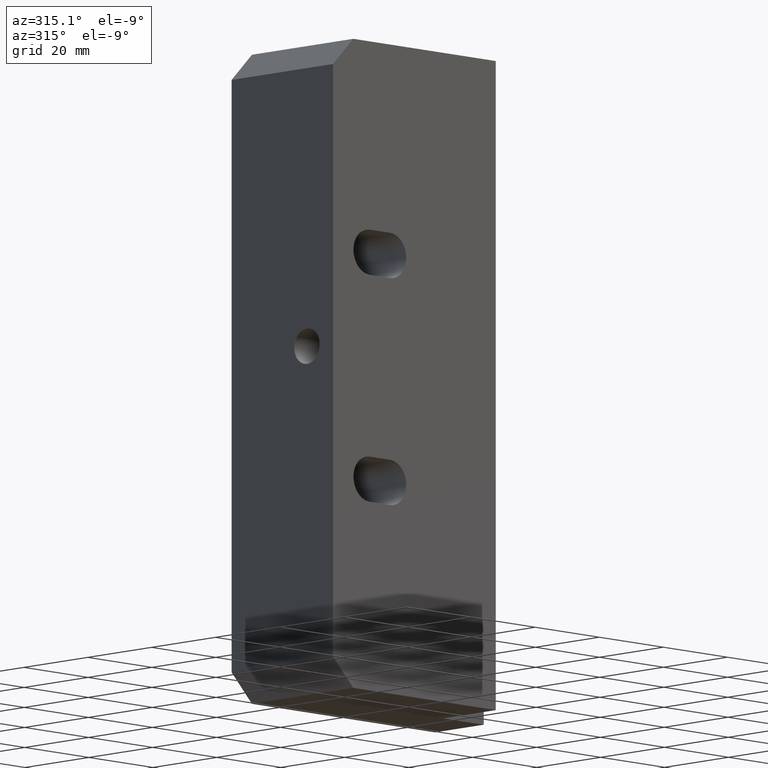
[diagram: clean part render]
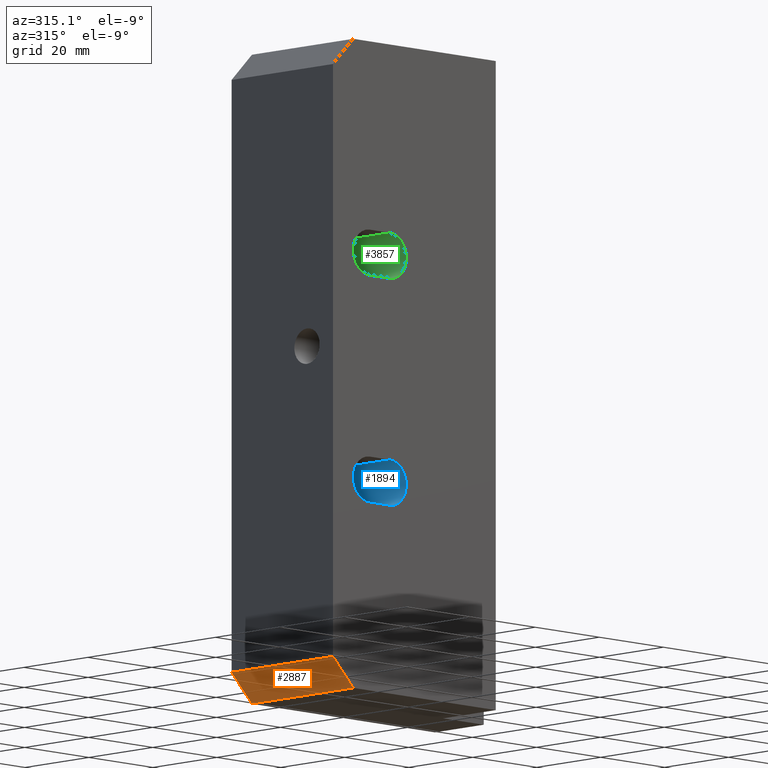
[diagram: same view with three faces highlighted in distinct colors, each labeled with its STEP entity id]
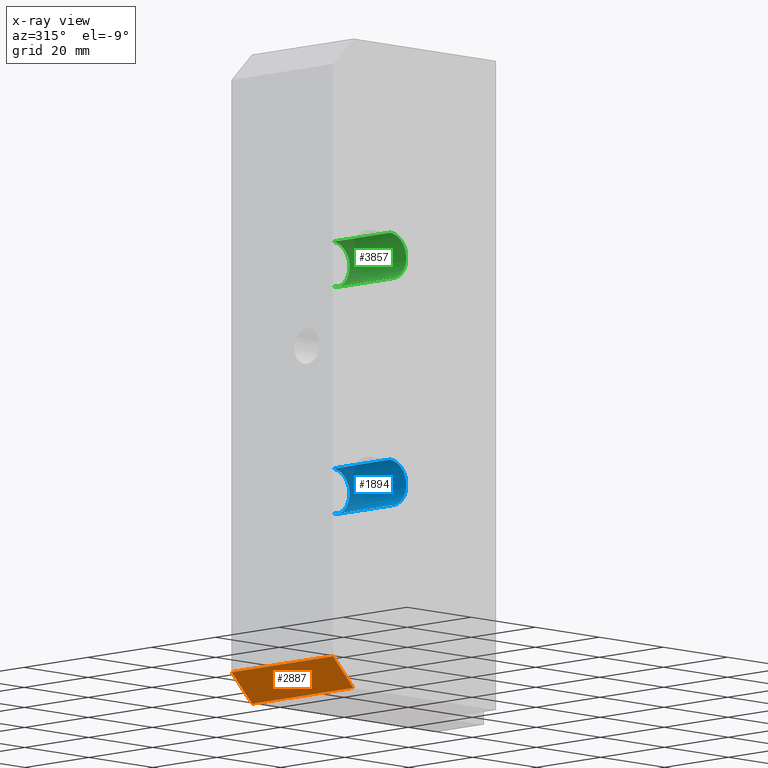
[diagram: x-ray of the same camera — body ghosted, the three highlighted faces saturated]
A machine part, auxiliary view with three faces highlighted in distinct colors.
The next image is the same camera in x-ray (body ghosted, the three faces saturated) — at least one of them is partly hidden behind the body in this view.
Their STEP definitions:

[orange] entity #2887 — the highlighted planar face has unit normal (0.7071, 0, 0.7071).
#42 = DIRECTION ( 'NONE',  ( 0.7071067811865486800, 0.0000000000000000000, -0.7071067811865463500 ) ) ;
#162 = VECTOR ( 'NONE', #915, 39.37007874015748100 ) ;
#200 = CARTESIAN_POINT ( 'NONE',  ( -2.249999999999999600, 1.250000000000000000, -5.719999999999999800 ) ) ;
#341 = VECTOR ( 'NONE', #3307, 39.37007874015748100 ) ;
#414 = AXIS2_PLACEMENT_3D ( 'NONE', #1345, #2018, #42 ) ;
#432 = CARTESIAN_POINT ( 'NONE',  ( -2.249999999999999600, 0.0000000000000000000, -5.719999999999999800 ) ) ;
#496 = CARTESIAN_POINT ( 'NONE',  ( -2.500000000000000000, 0.0000000000000000000, -5.470000000000000600 ) ) ;
#607 = EDGE_CURVE ( 'NONE', #1426, #3524, #3099, .T. ) ;
#723 = EDGE_CURVE ( 'NONE', #3618, #1426, #3352, .T. ) ;
#820 = ORIENTED_EDGE ( 'NONE', *, *, #607, .F. ) ;
#915 = DIRECTION ( 'NONE',  ( 0.7071067811865486800, -0.0000000000000000000, -0.7071067811865463500 ) ) ;
#1036 = CARTESIAN_POINT ( 'NONE',  ( -2.500000000000000000, 1.250000000000000000, -5.470000000000000600 ) ) ;
#1345 = CARTESIAN_POINT ( 'NONE',  ( -2.500000000000000000, 1.250000000000000000, -5.470000000000000600 ) ) ;
#1347 = DIRECTION ( 'NONE',  ( -0.7071067811865486800, -0.0000000000000000000, 0.7071067811865463500 ) ) ;
#1426 = VERTEX_POINT ( 'NONE', #3484 ) ;
#1679 = VECTOR ( 'NONE', #1347, 39.37007874015748100 ) ;
#1681 = PLANE ( 'NONE',  #414 ) ;
#1696 = CARTESIAN_POINT ( 'NONE',  ( -2.500000000000000000, 1.250000000000000000, -5.470000000000000600 ) ) ;
#1707 = EDGE_CURVE ( 'NONE', #2950, #3618, #3656, .T. ) ;
#2018 = DIRECTION ( 'NONE',  ( 0.7071067811865463500, 0.0000000000000000000, 0.7071067811865486800 ) ) ;
#2309 = VECTOR ( 'NONE', #2388, 39.37007874015748100 ) ;
#2388 = DIRECTION ( 'NONE',  ( 0.0000000000000000000, -1.000000000000000000, 0.0000000000000000000 ) ) ;
#2423 = ORIENTED_EDGE ( 'NONE', *, *, #3713, .F. ) ;
#2536 = EDGE_LOOP ( 'NONE', ( #3175, #3417, #2423, #820 ) ) ;
#2543 = FACE_OUTER_BOUND ( 'NONE', #2536, .T. ) ;
#2887 = ADVANCED_FACE ( 'NONE', ( #2543 ), #1681, .F. ) ;
#2950 = VERTEX_POINT ( 'NONE', #432 ) ;
#2978 = CARTESIAN_POINT ( 'NONE',  ( -2.249999999999999600, 1.250000000000000000, -5.719999999999999800 ) ) ;
#3099 = LINE ( 'NONE', #1696, #2309 ) ;
#3175 = ORIENTED_EDGE ( 'NONE', *, *, #723, .F. ) ;
#3237 = CARTESIAN_POINT ( 'NONE',  ( -1.124999999999996000, 0.0000000000000000000, -6.844999999999999800 ) ) ;
#3307 = DIRECTION ( 'NONE',  ( -0.0000000000000000000, 1.000000000000000000, 0.0000000000000000000 ) ) ;
#3352 = LINE ( 'NONE', #1036, #1679 ) ;
#3417 = ORIENTED_EDGE ( 'NONE', *, *, #1707, .F. ) ;
#3484 = CARTESIAN_POINT ( 'NONE',  ( -2.500000000000000000, 1.250000000000000000, -5.470000000000000600 ) ) ;
#3524 = VERTEX_POINT ( 'NONE', #496 ) ;
#3618 = VERTEX_POINT ( 'NONE', #200 ) ;
#3656 = LINE ( 'NONE', #2978, #341 ) ;
#3677 = LINE ( 'NONE', #3237, #162 ) ;
#3713 = EDGE_CURVE ( 'NONE', #3524, #2950, #3677, .T. ) ;

[blue] entity #1894 — the highlighted cylindrical surface (edge-blend (fillet) strip) has radius 5.08 mm, axis along (-0, -1, -0).
#342 = VERTEX_POINT ( 'NONE', #2900 ) ;
#416 = DIRECTION ( 'NONE',  ( -0.0000000000000000000, -1.000000000000000000, -0.0000000000000000000 ) ) ;
#501 = CYLINDRICAL_SURFACE ( 'NONE', #912, 0.2000000000000000400 ) ;
#697 = EDGE_LOOP ( 'NONE', ( #2157, #825, #2161, #1855 ) ) ;
#813 = DIRECTION ( 'NONE',  ( -0.0000000000000000000, -1.000000000000000000, -0.0000000000000000000 ) ) ;
#825 = ORIENTED_EDGE ( 'NONE', *, *, #4012, .F. ) ;
#861 = EDGE_CURVE ( 'NONE', #342, #1403, #2476, .T. ) ;
#897 = DIRECTION ( 'NONE',  ( 0.0000000000000000000, -1.000000000000000000, 0.0000000000000000000 ) ) ;
#912 = AXIS2_PLACEMENT_3D ( 'NONE', #1721, #416, #3710 ) ;
#982 = DIRECTION ( 'NONE',  ( 0.0000000000000000000, -1.000000000000000000, 0.0000000000000000000 ) ) ;
#1403 = VERTEX_POINT ( 'NONE', #1437 ) ;
#1437 = CARTESIAN_POINT ( 'NONE',  ( -1.798734939028664200, 0.7000000000000000700, -3.658999999999444300 ) ) ;
#1522 = CIRCLE ( 'NONE', #1882, 0.2000000000000000400 ) ;
#1566 = EDGE_CURVE ( 'NONE', #2529, #3943, #1522, .T. ) ;
#1570 = FACE_OUTER_BOUND ( 'NONE', #697, .T. ) ;
#1600 = AXIS2_PLACEMENT_3D ( 'NONE', #2972, #982, #3301 ) ;
#1708 = LINE ( 'NONE', #1765, #2494 ) ;
#1721 = CARTESIAN_POINT ( 'NONE',  ( -1.798734939028664200, 0.7000000000000000700, -3.858999999999444400 ) ) ;
#1754 = VECTOR ( 'NONE', #813, 39.37007874015748100 ) ;
#1765 = CARTESIAN_POINT ( 'NONE',  ( -1.798734939028664200, 0.7000000000000000700, -4.058999999999444200 ) ) ;
#1855 = ORIENTED_EDGE ( 'NONE', *, *, #2608, .T. ) ;
#1882 = AXIS2_PLACEMENT_3D ( 'NONE', #2888, #897, #3227 ) ;
#1894 = ADVANCED_FACE ( 'NONE', ( #1570 ), #501, .F. ) ;
#2157 = ORIENTED_EDGE ( 'NONE', *, *, #1566, .T. ) ;
#2161 = ORIENTED_EDGE ( 'NONE', *, *, #861, .F. ) ;
#2476 = CIRCLE ( 'NONE', #1600, 0.2000000000000000400 ) ;
#2494 = VECTOR ( 'NONE', #4089, 39.37007874015748100 ) ;
#2529 = VERTEX_POINT ( 'NONE', #3411 ) ;
#2608 = EDGE_CURVE ( 'NONE', #342, #2529, #1708, .T. ) ;
#2643 = LINE ( 'NONE', #2811, #1754 ) ;
#2730 = CARTESIAN_POINT ( 'NONE',  ( -1.798734939028664200, -0.0000000000000000000, -3.658999999999444300 ) ) ;
#2811 = CARTESIAN_POINT ( 'NONE',  ( -1.798734939028664200, 0.7000000000000000700, -3.658999999999444300 ) ) ;
#2888 = CARTESIAN_POINT ( 'NONE',  ( -1.798734939028664200, -0.0000000000000000000, -3.858999999999444400 ) ) ;
#2900 = CARTESIAN_POINT ( 'NONE',  ( -1.798734939028664200, 0.7000000000000000700, -4.058999999999444200 ) ) ;
#2972 = CARTESIAN_POINT ( 'NONE',  ( -1.798734939028664200, 0.7000000000000000700, -3.858999999999444400 ) ) ;
#3227 = DIRECTION ( 'NONE',  ( 0.0000000000000000000, 0.0000000000000000000, -1.000000000000000000 ) ) ;
#3301 = DIRECTION ( 'NONE',  ( 0.0000000000000000000, 0.0000000000000000000, -1.000000000000000000 ) ) ;
#3411 = CARTESIAN_POINT ( 'NONE',  ( -1.798734939028664200, 0.0000000000000000000, -4.058999999999444200 ) ) ;
#3710 = DIRECTION ( 'NONE',  ( 0.0000000000000000000, 0.0000000000000000000, -1.000000000000000000 ) ) ;
#3943 = VERTEX_POINT ( 'NONE', #2730 ) ;
#4012 = EDGE_CURVE ( 'NONE', #1403, #3943, #2643, .T. ) ;
#4089 = DIRECTION ( 'NONE',  ( -0.0000000000000000000, -1.000000000000000000, -0.0000000000000000000 ) ) ;

[green] entity #3857 — the highlighted cylindrical surface (edge-blend (fillet) strip) has radius 5.08 mm, axis along (-0, -1, -0).
#1 = VERTEX_POINT ( 'NONE', #1374 ) ;
#123 = AXIS2_PLACEMENT_3D ( 'NONE', #468, #2784, #789 ) ;
#298 = CIRCLE ( 'NONE', #123, 0.2000000000000000400 ) ;
#318 = EDGE_CURVE ( 'NONE', #1636, #1, #561, .T. ) ;
#366 = VECTOR ( 'NONE', #3853, 39.37007874015748100 ) ;
#468 = CARTESIAN_POINT ( 'NONE',  ( -1.798734939028664200, 0.7000000000000000700, -1.858999999999444900 ) ) ;
#561 = LINE ( 'NONE', #3551, #2207 ) ;
#647 = CARTESIAN_POINT ( 'NONE',  ( -1.798734939028664200, 0.7000000000000000700, -1.858999999999444900 ) ) ;
#789 = DIRECTION ( 'NONE',  ( 0.0000000000000000000, 0.0000000000000000000, -1.000000000000000000 ) ) ;
#1144 = CIRCLE ( 'NONE', #1514, 0.2000000000000000400 ) ;
#1230 = LINE ( 'NONE', #1518, #366 ) ;
#1374 = CARTESIAN_POINT ( 'NONE',  ( -1.798734939028664200, -0.0000000000000000000, -1.658999999999444900 ) ) ;
#1377 = EDGE_CURVE ( 'NONE', #3161, #1636, #298, .T. ) ;
#1514 = AXIS2_PLACEMENT_3D ( 'NONE', #1576, #3906, #1916 ) ;
#1518 = CARTESIAN_POINT ( 'NONE',  ( -1.798734939028664200, 0.7000000000000000700, -2.058999999999445100 ) ) ;
#1576 = CARTESIAN_POINT ( 'NONE',  ( -1.798734939028664200, -0.0000000000000000000, -1.858999999999444900 ) ) ;
#1636 = VERTEX_POINT ( 'NONE', #2276 ) ;
#1742 = ORIENTED_EDGE ( 'NONE', *, *, #3174, .T. ) ;
#1916 = DIRECTION ( 'NONE',  ( 0.0000000000000000000, 0.0000000000000000000, -1.000000000000000000 ) ) ;
#2006 = ORIENTED_EDGE ( 'NONE', *, *, #1377, .F. ) ;
#2207 = VECTOR ( 'NONE', #3880, 39.37007874015748100 ) ;
#2276 = CARTESIAN_POINT ( 'NONE',  ( -1.798734939028664200, 0.7000000000000000700, -1.658999999999444900 ) ) ;
#2294 = ORIENTED_EDGE ( 'NONE', *, *, #3644, .T. ) ;
#2378 = CYLINDRICAL_SURFACE ( 'NONE', #3874, 0.2000000000000000400 ) ;
#2482 = ORIENTED_EDGE ( 'NONE', *, *, #318, .F. ) ;
#2784 = DIRECTION ( 'NONE',  ( 0.0000000000000000000, -1.000000000000000000, 0.0000000000000000000 ) ) ;
#2979 = DIRECTION ( 'NONE',  ( -0.0000000000000000000, -1.000000000000000000, -0.0000000000000000000 ) ) ;
#3161 = VERTEX_POINT ( 'NONE', #3211 ) ;
#3174 = EDGE_CURVE ( 'NONE', #3877, #1, #1144, .T. ) ;
#3211 = CARTESIAN_POINT ( 'NONE',  ( -1.798734939028664200, 0.7000000000000000700, -2.058999999999445100 ) ) ;
#3308 = DIRECTION ( 'NONE',  ( 0.0000000000000000000, 0.0000000000000000000, -1.000000000000000000 ) ) ;
#3497 = EDGE_LOOP ( 'NONE', ( #1742, #2482, #2006, #2294 ) ) ;
#3551 = CARTESIAN_POINT ( 'NONE',  ( -1.798734939028664200, 0.7000000000000000700, -1.658999999999444900 ) ) ;
#3644 = EDGE_CURVE ( 'NONE', #3161, #3877, #1230, .T. ) ;
#3646 = CARTESIAN_POINT ( 'NONE',  ( -1.798734939028664200, 0.0000000000000000000, -2.058999999999445100 ) ) ;
#3853 = DIRECTION ( 'NONE',  ( -0.0000000000000000000, -1.000000000000000000, -0.0000000000000000000 ) ) ;
#3857 = ADVANCED_FACE ( 'NONE', ( #4151 ), #2378, .F. ) ;
#3874 = AXIS2_PLACEMENT_3D ( 'NONE', #647, #2979, #3308 ) ;
#3877 = VERTEX_POINT ( 'NONE', #3646 ) ;
#3880 = DIRECTION ( 'NONE',  ( -0.0000000000000000000, -1.000000000000000000, -0.0000000000000000000 ) ) ;
#3906 = DIRECTION ( 'NONE',  ( 0.0000000000000000000, -1.000000000000000000, 0.0000000000000000000 ) ) ;
#4151 = FACE_OUTER_BOUND ( 'NONE', #3497, .T. ) ;